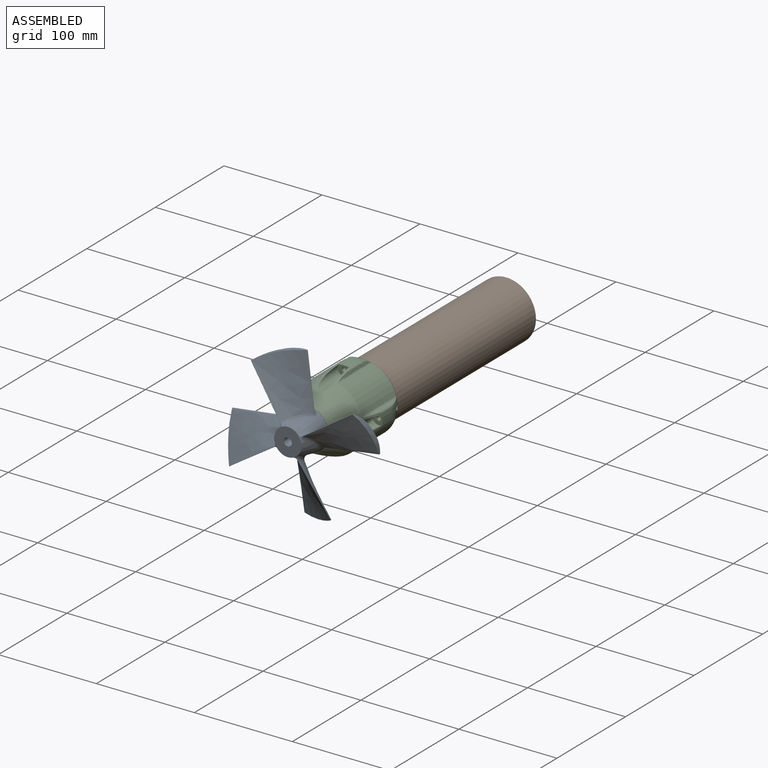
[diagram: assembled view]
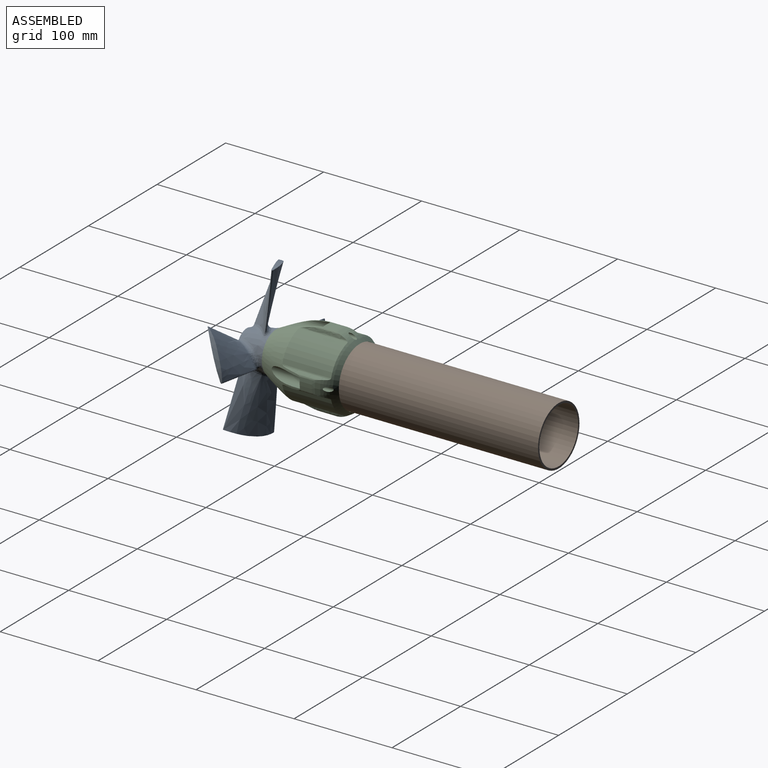
[diagram: assembled view, second angle]
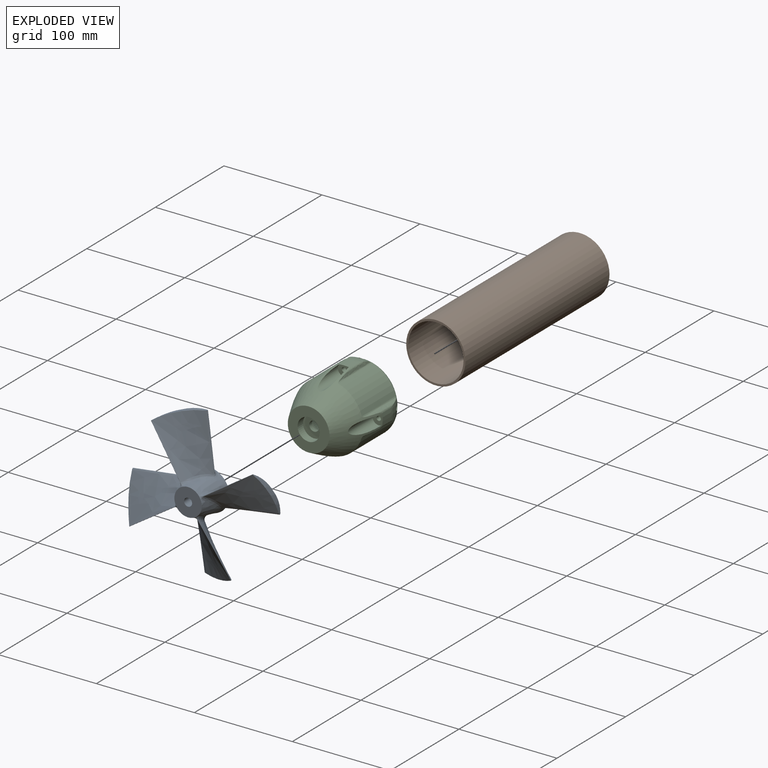
[diagram: exploded view]
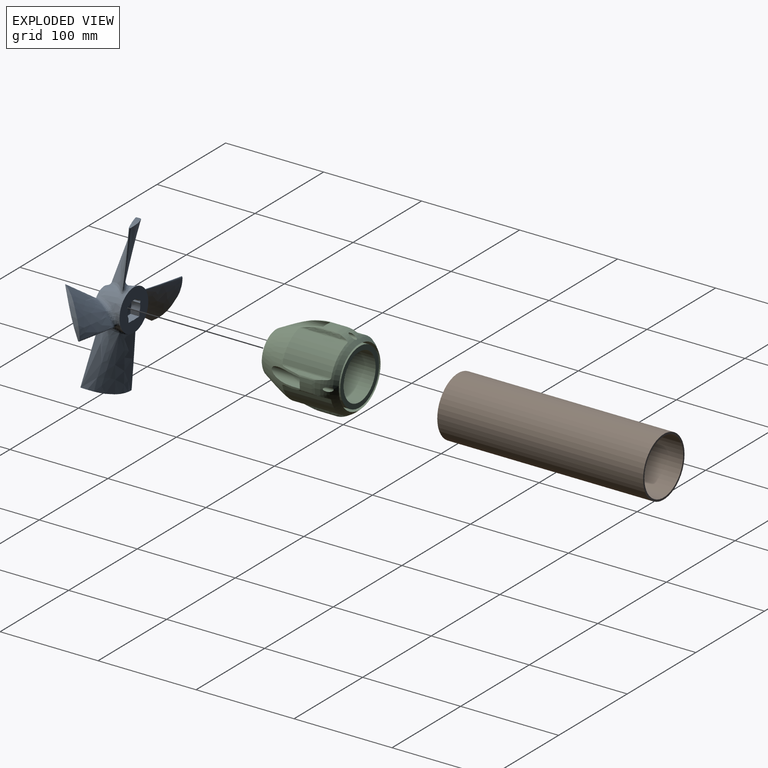
[diagram: exploded view, second angle]
ASSEMBLY  parts=3 mates=2
PART A: 90 faces, bbox 177.2x36.5x177.2 mm
  f0: bspline ~78x64.63mm, area 112.1mm2, adj f2,f4,f77
  f1: bspline ~78x66.99mm, area 2084.9mm2, adj f3,f5,f41,f77
  f2: bspline ~72.07x29.85mm, area 847.5mm2, adj f0,f3,f4,f44,f77
  f3: bspline ~70.19x15.1mm, area 228.1mm2, adj f1,f2,f43,f45,f46,f77
  f4: bspline ~78.77x50.68mm, area 1170.9mm2, adj f0,f2,f5,f42,f44,f77
  f5: bspline ~63.62x42.61mm, area 31.8mm2, adj f1,f4,f34,f35,f38,f39,f40,f77
  f6: bspline ~78x64.63mm, area 112.1mm2, adj f8,f10,f76
  f7: bspline ~78x66.99mm, area 2084.9mm2, adj f9,f11,f50,f76
  f8: bspline ~72.07x29.85mm, area 847.5mm2, adj f6,f9,f10,f53,f76
  f9: bspline ~70.19x15.1mm, area 228.1mm2, adj f7,f8,f52,f54,f55,f76
  f10: bspline ~78.77x50.68mm, area 1170.9mm2, adj f6,f8,f11,f51,f53,f76
  f11: bspline ~63.62x42.61mm, area 31.8mm2, adj f7,f10,f30,f31,f47,f48,f49,f76
  f12: bspline ~78x64.63mm, area 112.1mm2, adj f14,f16,f75
  f13: bspline ~78x66.99mm, area 2084.9mm2, adj f15,f17,f59,f75
  f14: bspline ~72.07x29.85mm, area 847.5mm2, adj f12,f15,f16,f62,f75
  f15: bspline ~70.19x15.1mm, area 228.1mm2, adj f13,f14,f61,f63,f64,f75
  f16: bspline ~78.77x50.68mm, area 1170.9mm2, adj f12,f14,f17,f60,f62,f75
  f17: bspline ~63.62x42.61mm, area 31.8mm2, adj f13,f16,f27,f28,f56,f57,f58,f75
  f18: bspline ~78x64.63mm, area 112.1mm2, adj f20,f22,f74
  f19: bspline ~78x66.99mm, area 2084.9mm2, adj f21,f23,f68,f74
  f20: bspline ~72.07x29.85mm, area 847.5mm2, adj f18,f21,f22,f71,f74
  f21: bspline ~70.19x15.1mm, area 228.1mm2, adj f19,f20,f70,f72,f73,f74
  f22: bspline ~78.77x50.68mm, area 1170.9mm2, adj f18,f20,f23,f69,f71,f74
  f23: bspline ~63.62x42.61mm, area 31.8mm2, adj f19,f22,f24,f25,f65,f66,f67,f74
  f24: bspline ~2.95x2.85mm, area 1.9mm2, adj f23,f25,f33,f65
  f25: bspline ~4.53x2.12mm, area 4mm2, adj f23,f24,f33,f67
  f26: cone r=21mm half-angle=13deg, axis (0,1,0), area 494.6mm2, adj f33,f36,f58,f60,f62,f64,f66,f68
  f27: bspline ~2.95x2.85mm, area 1.9mm2, adj f17,f28,f33,f56
  f28: bspline ~4.53x2.12mm, area 4mm2, adj f17,f27,f33,f58
  f29: cone r=21mm half-angle=13deg, axis (0,1,0), area 494.6mm2, adj f33,f36,f49,f51,f53,f55,f57,f59
  f30: bspline ~2.95x2.85mm, area 1.9mm2, adj f11,f31,f33,f47
  f31: bspline ~4.53x2.12mm, area 4mm2, adj f11,f30,f33,f49
  f32: cone r=21mm half-angle=13deg, axis (0,1,0), area 494.6mm2, adj f33,f36,f40,f42,f44,f46,f48,f50
  f33: plane 28.31x28.31mm, normal (0,-1,0), area 563.3mm2, adj f24,f25,f26,f27,f28,f29,f30,f31
  f34: bspline ~2.95x2.85mm, area 1.9mm2, adj f5,f33,f35,f38
  f35: bspline ~4.53x2.12mm, area 4mm2, adj f5,f33,f34,f40
  f36: plane 42.04x42.04mm, normal (0,1,0), area 1090.4mm2, adj f26,f29,f32,f37,f45,f54,f63,f72
  f37: cone r=21mm half-angle=13deg, axis (0,1,0), area 494.6mm2, adj f33,f36,f39,f41,f43,f67,f69,f71
  f38: bspline ~3.93x2.4mm, area 1.8mm2, adj f5,f33,f34,f39
  f39: bspline ~4.32x2.51mm, area 0.5mm2, adj f5,f37,f38,f41
  f40: bspline ~5.69x4.97mm, area 10mm2, adj f5,f32,f35,f42
  f41: bspline ~30.53x23mm, area 114.4mm2, adj f1,f37,f39,f43
  f42: bspline ~25.63x14.3mm, area 126.1mm2, adj f4,f32,f40,f44
  f43: bspline ~8.96x6.79mm, area 29.2mm2, adj f3,f37,f41,f45
  f44: bspline ~16.19x14.44mm, area 94.8mm2, adj f2,f4,f32,f42,f46
  f45: bspline ~6.06x5.55mm, area 18.2mm2, adj f3,f36,f43,f46
  f46: bspline ~6.17x5.98mm, area 5.4mm2, adj f3,f32,f44,f45
  f47: bspline ~3.93x2.4mm, area 1.8mm2, adj f11,f30,f33,f48
  f48: bspline ~4.32x2.51mm, area 0.5mm2, adj f11,f32,f47,f50
  f49: bspline ~5.69x4.97mm, area 10mm2, adj f11,f29,f31,f51
  f50: bspline ~30.53x23mm, area 114.4mm2, adj f7,f32,f48,f52
  f51: bspline ~25.63x14.3mm, area 126.1mm2, adj f10,f29,f49,f53
  f52: bspline ~8.96x6.79mm, area 29.2mm2, adj f9,f32,f50,f54
  f53: bspline ~16.19x14.44mm, area 94.8mm2, adj f8,f10,f29,f51,f55
  f54: bspline ~6.06x5.55mm, area 18.2mm2, adj f9,f36,f52,f55
  f55: bspline ~6.17x5.98mm, area 5.4mm2, adj f9,f29,f53,f54
  f56: bspline ~3.93x2.4mm, area 1.8mm2, adj f17,f27,f33,f57
  f57: bspline ~4.32x2.51mm, area 0.5mm2, adj f17,f29,f56,f59
  f58: bspline ~5.69x4.97mm, area 10mm2, adj f17,f26,f28,f60
  f59: bspline ~30.53x23mm, area 114.4mm2, adj f13,f29,f57,f61
  f60: bspline ~25.63x14.3mm, area 126.1mm2, adj f16,f26,f58,f62
  f61: bspline ~8.96x6.79mm, area 29.2mm2, adj f15,f29,f59,f63
  f62: bspline ~16.19x14.44mm, area 94.8mm2, adj f14,f16,f26,f60,f64
  f63: bspline ~6.06x5.55mm, area 18.2mm2, adj f15,f36,f61,f64
  f64: bspline ~6.17x5.98mm, area 5.4mm2, adj f15,f26,f62,f63
  f65: bspline ~3.93x2.4mm, area 1.8mm2, adj f23,f24,f33,f66
  f66: bspline ~4.32x2.51mm, area 0.5mm2, adj f23,f26,f65,f68
  f67: bspline ~5.69x4.97mm, area 10mm2, adj f23,f25,f37,f69
  f68: bspline ~23.25x18.37mm, area 114.4mm2, adj f19,f26,f66,f70
  f69: bspline ~25.63x14.3mm, area 126.1mm2, adj f22,f37,f67,f71
  f70: bspline ~8.96x6.79mm, area 29.2mm2, adj f21,f26,f68,f72
  f71: bspline ~16.19x14.44mm, area 94.8mm2, adj f20,f22,f37,f69,f73
  f72: bspline ~6.06x5.55mm, area 18.2mm2, adj f21,f36,f70,f73
  f73: bspline ~6.17x5.98mm, area 5.4mm2, adj f21,f37,f71,f72
  f74: cylinder r=75mm len=42.47mm, axis (0,-1,0), area 205.4mm2, adj f18,f19,f20,f21,f22,f23
  f75: cylinder r=75mm len=42.47mm, axis (0,-1,0), area 205.4mm2, adj f12,f13,f14,f15,f16,f17
  f76: cylinder r=75mm len=42.47mm, axis (0,-1,0), area 205.4mm2, adj f6,f7,f8,f9,f10,f11
  f77: cylinder r=75mm len=42.47mm, axis (0,-1,0), area 205.4mm2, adj f0,f1,f2,f3,f4,f5
  f78: cylinder r=9.25mm len=9mm, axis (0,1,0), area 74.1mm2, adj f36,f79,f87,f88
  f79: cylinder r=1.65mm len=9mm, axis (0,1,0), area 49.3mm2, adj f36,f78,f80,f88
  f80: cylinder r=9.25mm len=14.12mm, axis (0,1,0), area 144.6mm2, adj f36,f79,f81,f88
  f81: cylinder r=1.65mm len=9mm, axis (0,1,0), area 49.3mm2, adj f36,f80,f82,f88
  f82: cylinder r=9.25mm len=9mm, axis (0,1,0), area 74.1mm2, adj f36,f81,f83,f88
  f83: plane 9x4.2mm, normal (-1,0,0), area 37.8mm2, adj f36,f82,f84,f88
  f84: plane 9x5.75mm, normal (0,0,1), area 51.8mm2, adj f36,f83,f85,f88
  f85: cylinder r=9.25mm len=9mm, axis (0,1,0), area 39.3mm2, adj f36,f84,f86,f88
  f86: plane 9x5.75mm, normal (0,0,1), area 51.8mm2, adj f36,f85,f87,f88
  f87: plane 9x4.2mm, normal (1,0,0), area 37.8mm2, adj f36,f78,f86,f88
  f88: plane 19.32x18.5mm, normal (0,1,0), area 242.2mm2, adj f78,f79,f80,f81,f82,f83,f84,f85
  f89: cylinder r=4.1mm len=21.3mm, axis (0,1,0), area 548.8mm2, adj f33,f88
PART B: 4 faces, bbox 60.4x210x60.4 mm
  f0: cylinder r=28.25mm len=210mm, axis (0,-1,0), area 37275mm2, adj f2,f3
  f1: cylinder r=30.22mm len=210mm, axis (0,-1,0), area 39874.4mm2, adj f2,f3
  f2: plane 60.44x60.44mm, normal (0,1,0), area 361.9mm2, adj f0,f1
  f3: plane 60.44x60.44mm, normal (0,-1,0), area 361.9mm2, adj f0,f1
PART C: 44 faces, bbox 79x85x79 mm
  f0: cylinder r=39.5mm len=12mm, axis (0,1,0), area 144.2mm2, adj f3,f6,f14,f40
  f1: cylinder r=35mm len=49.81mm, axis (0,1,0), area 1753.2mm2, adj f2,f3,f14,f40
  f2: extruded ~49.81x5.43mm, area 243.5mm2, adj f1,f12,f14,f40
  f3: extruded ~49.81x5.43mm, area 243.5mm2, adj f0,f1,f14,f40
  f4: cylinder r=39.5mm len=12mm, axis (0,1,0), area 144.2mm2, adj f7,f10,f14,f40
  f5: cylinder r=35mm len=49.81mm, axis (0,1,0), area 1753.2mm2, adj f6,f7,f14,f40
  f6: extruded ~49.81x5.43mm, area 243.5mm2, adj f0,f5,f14,f40
  f7: extruded ~49.81x5.43mm, area 243.5mm2, adj f4,f5,f14,f40
  f8: cylinder r=39.5mm len=12mm, axis (0,1,0), area 144.2mm2, adj f11,f14,f40,f42
  f9: cylinder r=35mm len=49.81mm, axis (0,1,0), area 1753.2mm2, adj f10,f11,f14,f40
  f10: extruded ~49.81x5.43mm, area 243.5mm2, adj f4,f9,f14,f40
  f11: extruded ~49.81x5.43mm, area 243.5mm2, adj f8,f9,f14,f40
  f12: cylinder r=39.5mm len=12mm, axis (0,1,0), area 144.2mm2, adj f2,f14,f40,f43
  f13: plane 56.5x56.5mm, normal (0,1,0), area 801.6mm2, adj f24,f37
  f14: revolved ~79x79mm, area 2916.6mm2, adj f0,f1,f2,f3,f4,f5,f6,f7
  f15: plane 42.6x42.6mm, normal (0,-1,0), area 1024.2mm2, adj f14,f16
  f16: cylinder r=11.3mm len=22.6mm, axis (0,1,0), area 568mm2, adj f15,f17
  f17: plane 22.6x22.6mm, normal (0,-1,0), area 321mm2, adj f16,f18
  f18: cylinder r=5.05mm len=10.1mm, axis (0,1,0), area 126.9mm2, adj f17,f19
  f19: plane 16x16mm, normal (0,1,0), area 120.9mm2, adj f18,f20
  f20: cylinder r=8mm len=16mm, axis (0,1,0), area 251.3mm2, adj f19,f21
  f21: plane 22.6x22.6mm, normal (0,1,0), area 200.1mm2, adj f20,f22
  f22: cylinder r=11.3mm len=22.6mm, axis (0,1,0), area 568mm2, adj f21,f23
  f23: plane 46.6x46.6mm, normal (0,1,0), area 1304.4mm2, adj f22,f24
  f24: cylinder r=23.3mm len=60mm, axis (0,1,0), area 8783.9mm2, adj f13,f23
  f25: cylinder r=2.2mm len=30.39mm, axis (0,-1,0), area 368.8mm2, adj f27,f40
  f26: cylinder r=6.25mm len=35.72mm, axis (0,-1,0), area 666.3mm2, adj f14,f27
  f27: plane 12.5x10.23mm, normal (0,-1,0), area 91.3mm2, adj f14,f25,f26
  f28: cylinder r=2.2mm len=30.39mm, axis (0,-1,0), area 368.9mm2, adj f30,f40
  f29: cylinder r=6.25mm len=35.72mm, axis (0,-1,0), area 666.3mm2, adj f14,f30
  f30: plane 12.5x10.23mm, normal (0,-1,0), area 91.3mm2, adj f14,f28,f29
  f31: cylinder r=2.2mm len=30.39mm, axis (0,-1,0), area 368.8mm2, adj f33,f40
  f32: cylinder r=6.25mm len=35.72mm, axis (0,-1,0), area 666.3mm2, adj f14,f33
  f33: plane 12.5x10.23mm, normal (0,-1,0), area 91.3mm2, adj f14,f31,f32
  f34: cylinder r=2.2mm len=30.39mm, axis (0,-1,0), area 368.8mm2, adj f36,f40
  f35: cylinder r=6.25mm len=35.71mm, axis (0,-1,0), area 666.5mm2, adj f14,f36
  f36: plane 12.5x10.23mm, normal (0,-1,0), area 91.3mm2, adj f14,f34,f35
  f37: cylinder r=28.25mm len=56.5mm, axis (0,1,0), area 3550mm2, adj f13,f39
  f38: cylinder r=30.45mm len=60.9mm, axis (0,1,0), area 3826.5mm2, adj f39,f40
  f39: plane 60.9x60.9mm, normal (0,1,0), area 405.7mm2, adj f37,f38
  f40: torus R=9.5mm, axis (0,1,0), area 2405.3mm2, adj f0,f1,f2,f3,f4,f5,f6,f7
  f41: cylinder r=35mm len=49.81mm, axis (0,1,0), area 1753.2mm2, adj f14,f40,f42,f43
  f42: extruded ~49.81x5.43mm, area 243.5mm2, adj f8,f14,f40,f41
  f43: extruded ~49.81x5.43mm, area 243.5mm2, adj f12,f14,f40,f41
PLACE A t=(156.53,-158.79,-150.75)mm
PLACE B t=(156.53,-50.35,-150.75)mm
PLACE C t=(156.53,-43.49,-150.75)mm
MATE slider C.f0 <-> B.f0  axis (0,1,0) through (156.53,-43.49,-150.75)mm
MATE slider C.f0 <-> A.f26  axis (0,1,0) through (156.53,-128.49,-150.75)mm
